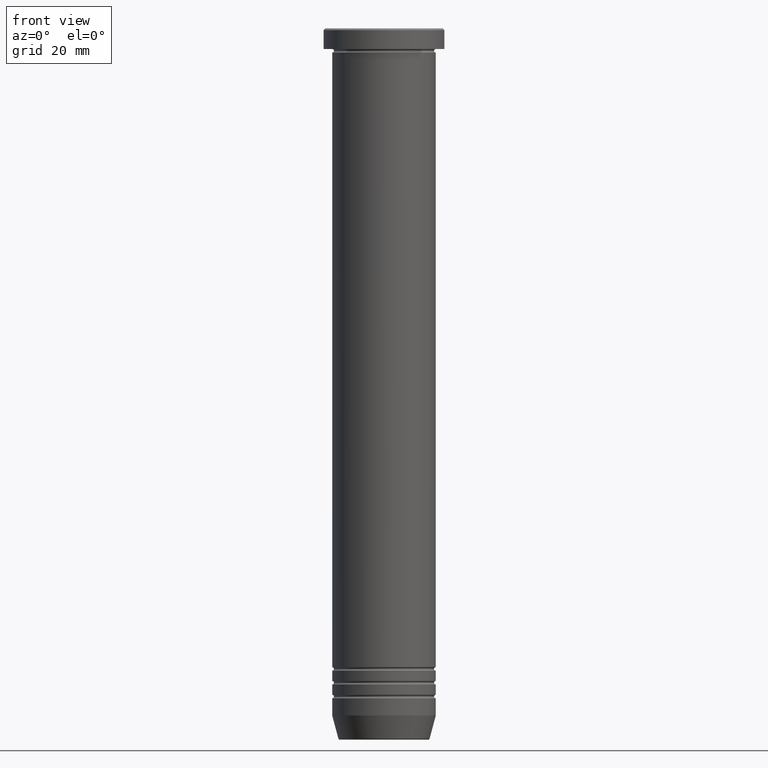
[diagram: clean part render]
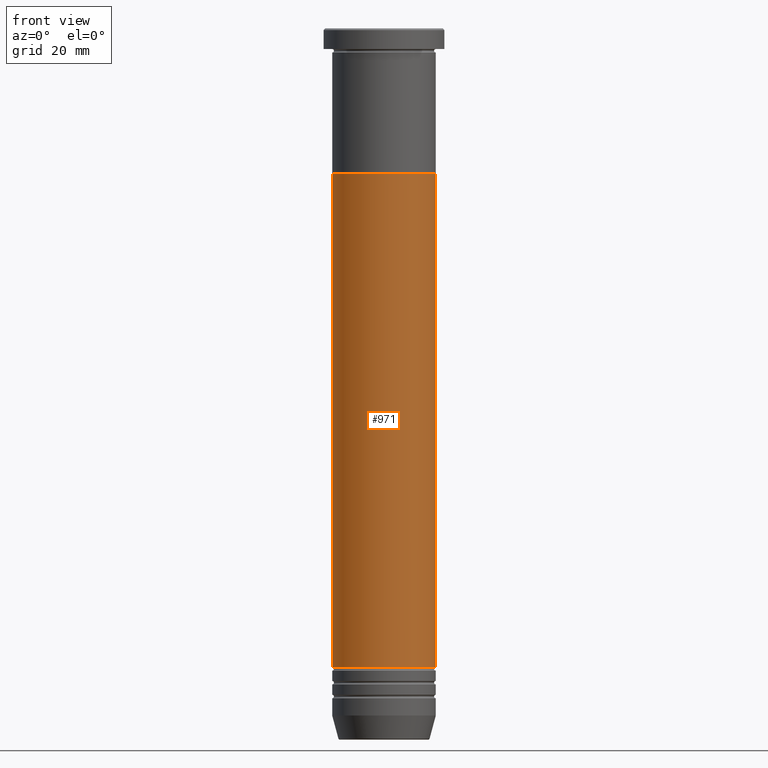
[diagram: same view with one face highlighted and labeled with its STEP entity id]
A machine part, front view. The second image highlights one B-rep face of the part: STEP entity #971.
In plain terms, the highlighted cylindrical surface (partial cylindrical patch) has radius 15 mm, axis along (-0, -0, 1).
Its self-contained STEP definition (entity closure, byte-faithful):
#11 = VECTOR ( 'NONE', #778, 1000.000000000000000 ) ;
#74 = LINE ( 'NONE', #689, #11 ) ;
#153 = VECTOR ( 'NONE', #757, 1000.000000000000000 ) ;
#158 = EDGE_CURVE ( 'NONE', #391, #187, #967, .T. ) ;
#187 = VERTEX_POINT ( 'NONE', #688 ) ;
#311 = AXIS2_PLACEMENT_3D ( 'NONE', #758, #429, #1111 ) ;
#381 = ORIENTED_EDGE ( 'NONE', *, *, #439, .F. ) ;
#391 = VERTEX_POINT ( 'NONE', #819 ) ;
#421 = ORIENTED_EDGE ( 'NONE', *, *, #974, .T. ) ;
#429 = DIRECTION ( 'NONE',  ( -0.000000000000000000, -0.000000000000000000, 1.000000000000000000 ) ) ;
#435 = CARTESIAN_POINT ( 'NONE',  ( 14.99999999999999112, 0.000000000000000000, -185.0000000000000284 ) ) ;
#439 = EDGE_CURVE ( 'NONE', #1135, #391, #506, .T. ) ;
#462 = VERTEX_POINT ( 'NONE', #435 ) ;
#502 = ORIENTED_EDGE ( 'NONE', *, *, #158, .F. ) ;
#506 = LINE ( 'NONE', #847, #153 ) ;
#581 = DIRECTION ( 'NONE',  ( -0.000000000000000000, -0.000000000000000000, 1.000000000000000000 ) ) ;
#594 = ORIENTED_EDGE ( 'NONE', *, *, #596, .T. ) ;
#596 = EDGE_CURVE ( 'NONE', #1135, #462, #609, .T. ) ;
#599 = DIRECTION ( 'NONE',  ( 1.000000000000000000, 0.000000000000000000, 0.000000000000000000 ) ) ;
#609 = CIRCLE ( 'NONE', #646, 14.99999999999999112 ) ;
#646 = AXIS2_PLACEMENT_3D ( 'NONE', #832, #581, #1093 ) ;
#667 = AXIS2_PLACEMENT_3D ( 'NONE', #1112, #768, #599 ) ;
#670 = CARTESIAN_POINT ( 'NONE',  ( -14.99999999999999112, 1.836970198721028800E-15, -185.0000000000000284 ) ) ;
#688 = CARTESIAN_POINT ( 'NONE',  ( 15.00000000000000000, 0.000000000000000000, -41.99999999999999289 ) ) ;
#689 = CARTESIAN_POINT ( 'NONE',  ( 14.99999999999999645, 0.000000000000000000, 0.000000000000000000 ) ) ;
#757 = DIRECTION ( 'NONE',  ( -0.000000000000000000, -0.000000000000000000, 1.000000000000000000 ) ) ;
#758 = CARTESIAN_POINT ( 'NONE',  ( 0.000000000000000000, 0.000000000000000000, -41.99999999999999289 ) ) ;
#768 = DIRECTION ( 'NONE',  ( -0.000000000000000000, -0.000000000000000000, 1.000000000000000000 ) ) ;
#771 = EDGE_LOOP ( 'NONE', ( #381, #594, #421, #502 ) ) ;
#778 = DIRECTION ( 'NONE',  ( -0.000000000000000000, -0.000000000000000000, 1.000000000000000000 ) ) ;
#819 = CARTESIAN_POINT ( 'NONE',  ( -15.00000000000000000, 1.836970198721029589E-15, -41.99999999999999289 ) ) ;
#832 = CARTESIAN_POINT ( 'NONE',  ( 0.000000000000000000, 0.000000000000000000, -185.0000000000000284 ) ) ;
#847 = CARTESIAN_POINT ( 'NONE',  ( -14.99999999999999645, 1.836970198721029194E-15, 0.000000000000000000 ) ) ;
#849 = CYLINDRICAL_SURFACE ( 'NONE', #667, 14.99999999999999645 ) ;
#967 = CIRCLE ( 'NONE', #311, 15.00000000000000000 ) ;
#971 = ADVANCED_FACE ( 'NONE', ( #1026 ), #849, .T. ) ;
#974 = EDGE_CURVE ( 'NONE', #462, #187, #74, .T. ) ;
#1026 = FACE_OUTER_BOUND ( 'NONE', #771, .T. ) ;
#1093 = DIRECTION ( 'NONE',  ( 1.000000000000000000, 0.000000000000000000, 0.000000000000000000 ) ) ;
#1111 = DIRECTION ( 'NONE',  ( 1.000000000000000000, 0.000000000000000000, 0.000000000000000000 ) ) ;
#1112 = CARTESIAN_POINT ( 'NONE',  ( 0.000000000000000000, 0.000000000000000000, 0.000000000000000000 ) ) ;
#1135 = VERTEX_POINT ( 'NONE', #670 ) ;